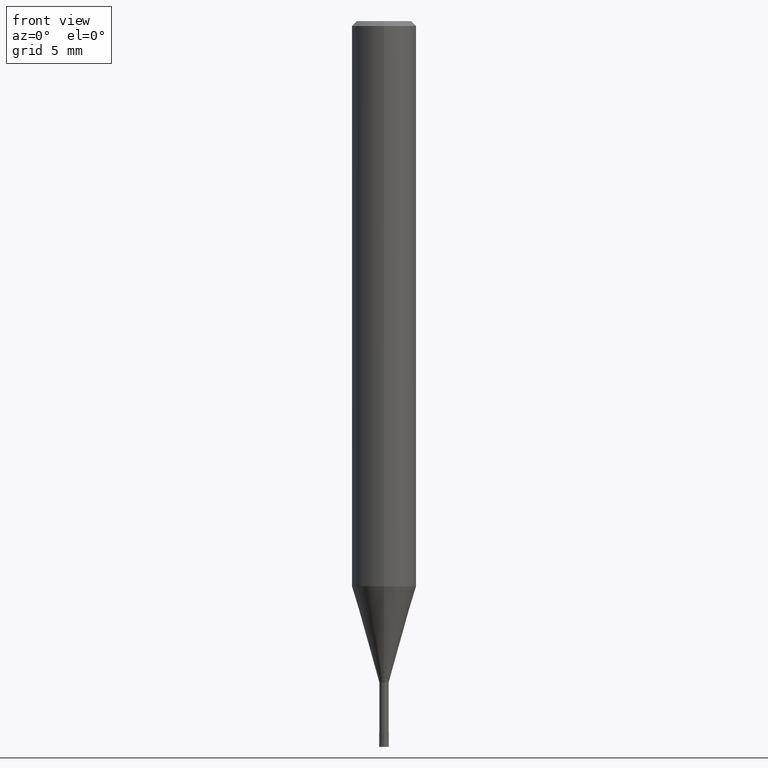
[diagram: clean part render]
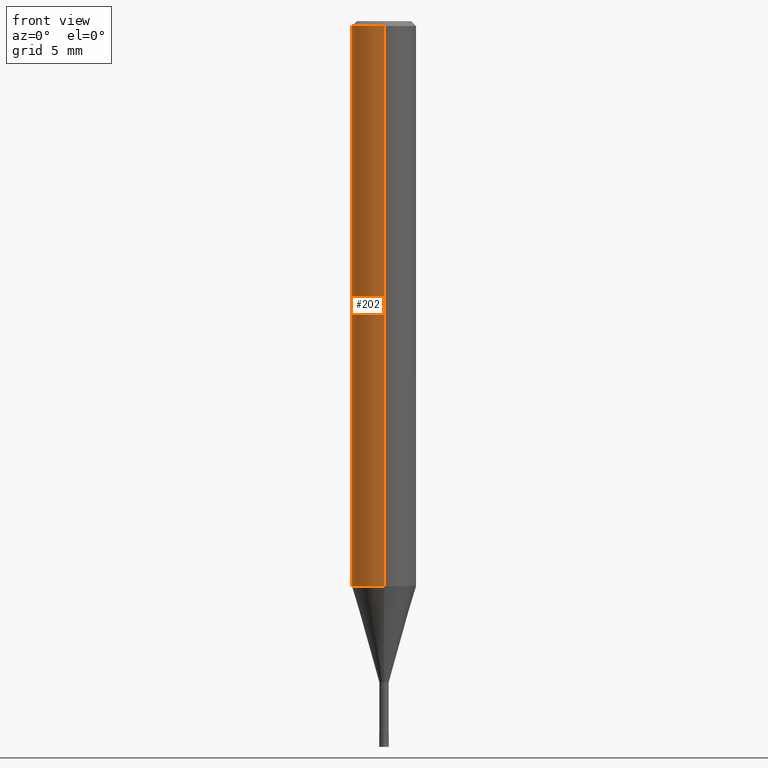
[diagram: same view with one face highlighted and labeled with its STEP entity id]
A machine part, front view. The second image highlights one B-rep face of the part: STEP entity #202.
In plain terms, the highlighted cylindrical surface (edge-blend (fillet) strip) has radius 2 mm, axis along (-0, -0, 1).
Its self-contained STEP definition (entity closure, byte-faithful):
#112=EDGE_CURVE('',#172,#118,#251,.T.);
#116=EDGE_CURVE('',#160,#180,#256,.T.);
#118=VERTEX_POINT('',#258);
#126=EDGE_CURVE('',#172,#180,#267,.T.);
#160=VERTEX_POINT('',#307);
#162=EDGE_CURVE('',#118,#160,#309,.T.);
#172=VERTEX_POINT('',#320);
#180=VERTEX_POINT('',#329);
#202=ADVANCED_FACE('',(#354),#355,.T.);
#251=LINE('',#402,#403);
#256=LINE('',#409,#410);
#258=CARTESIAN_POINT('',(2.44921270764475E-016,-2.0,-0.299999999999997));
#267=CIRCLE('',#424,2.0);
#307=CARTESIAN_POINT('',(0.0,2.0,-0.299999999999997));
#309=CIRCLE('',#475,2.0);
#320=CARTESIAN_POINT('',(2.44921270764475E-016,-2.0,-35.037));
#329=CARTESIAN_POINT('',(0.0,2.0,-35.037));
#354=FACE_OUTER_BOUND('',#529,.T.);
#355=CYLINDRICAL_SURFACE('',#530,2.0);
#402=CARTESIAN_POINT('',(2.44921270764475E-016,-2.0,-17.6685));
#403=VECTOR('',#572,1.0);
#409=CARTESIAN_POINT('',(-2.44921270764475E-016,2.0,-17.6685));
#410=VECTOR('',#579,1.0);
#424=AXIS2_PLACEMENT_3D('',#594,#595,#596);
#475=AXIS2_PLACEMENT_3D('',#647,#648,#649);
#529=EDGE_LOOP('',(#705,#706,#707,#708));
#530=AXIS2_PLACEMENT_3D('',#709,#710,#711);
#572=DIRECTION('',(-0.0,-0.0,1.0));
#579=DIRECTION('',(0.0,0.0,-1.0));
#594=CARTESIAN_POINT('',(0.0,0.0,-35.037));
#595=DIRECTION('',(0.0,0.0,-1.0));
#596=DIRECTION('',(0.0,1.0,0.0));
#647=CARTESIAN_POINT('',(0.0,0.0,-0.299999999999997));
#648=DIRECTION('',(0.0,0.0,-1.0));
#649=DIRECTION('',(0.0,1.0,0.0));
#705=ORIENTED_EDGE('',*,*,#116,.T.);
#706=ORIENTED_EDGE('',*,*,#126,.F.);
#707=ORIENTED_EDGE('',*,*,#112,.T.);
#708=ORIENTED_EDGE('',*,*,#162,.T.);
#709=CARTESIAN_POINT('',(0.0,0.0,-17.6685));
#710=DIRECTION('',(-0.0,-0.0,1.0));
#711=DIRECTION('',(0.0,1.0,0.0));